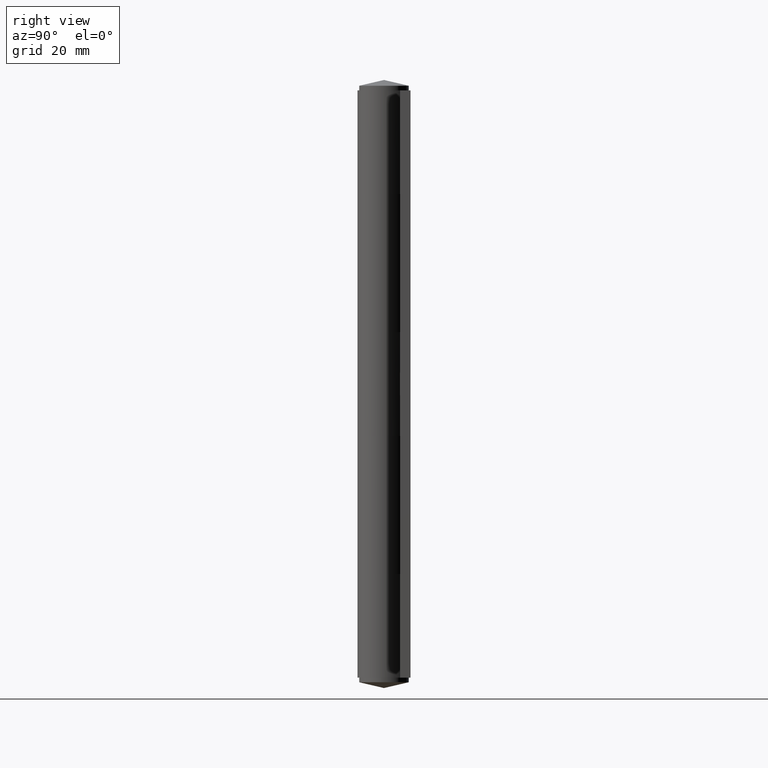
[diagram: clean part render]
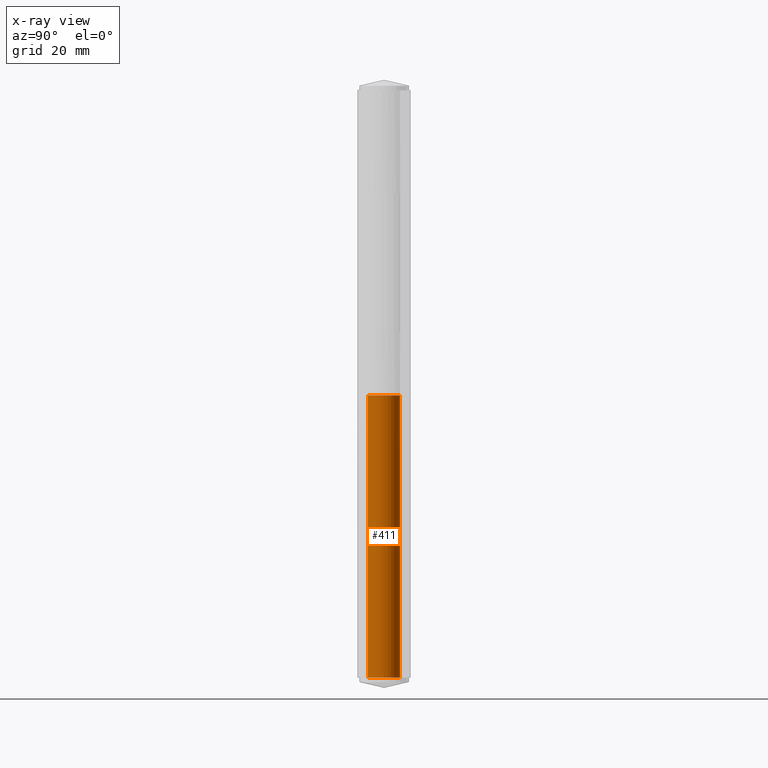
[diagram: x-ray — body ghosted, one internal face saturated and labeled with its STEP entity id]
A machine part, right view, then the same camera in x-ray: the body is ghosted and one INTERNAL B-rep face — a face not visible from any outside direction — is saturated and labeled: STEP entity #411.
In plain terms, the highlighted face is a freeform B-spline surface patch.
Its self-contained STEP definition (entity closure, byte-faithful):
#10=CARTESIAN_POINT('',(2.799994999999938,0.0,49.000007629394531));
#11=VERTEX_POINT('',#10);
#12=CARTESIAN_POINT('',(0.170935605844090,2.794772444883350,49.000007629394531));
#13=VERTEX_POINT('',#12);
#14=CARTESIAN_POINT('',(2.799994999999938,0.0,49.000007629394531));
#15=CARTESIAN_POINT('',(2.799994999999938,2.633972283438069,49.000007629394531));
#16=CARTESIAN_POINT('',(0.170935605844090,2.794772444883343,49.000007629394531));
#24=(BOUNDED_CURVE()B_SPLINE_CURVE(2,(#14,#15,#16),.UNSPECIFIED.,.F.,.U.)B_SPLINE_CURVE_WITH_KNOTS((3,3),(0.0,0.239332962217942),.UNSPECIFIED.)CURVE()GEOMETRIC_REPRESENTATION_ITEM()RATIONAL_B_SPLINE_CURVE((1.0,0.719603993311315,0.976072041621708))REPRESENTATION_ITEM(''));
#25=EDGE_CURVE('',#11,#13,#24,.T.);
#44=CARTESIAN_POINT('',(-0.170935605844033,-2.794772444883350,49.000007629394531));
#45=VERTEX_POINT('',#44);
#59=CARTESIAN_POINT('',(-0.170935605844032,-2.794772444883343,49.000007629394538));
#60=CARTESIAN_POINT('',(-0.085547584667329,-2.799994999999910,49.000007629394531));
#61=CARTESIAN_POINT('',(2.817679E-014,-2.799994999999910,49.000007629394531));
#62=CARTESIAN_POINT('',(2.799994999999938,-2.799994999999911,49.000007629394517));
#63=CARTESIAN_POINT('',(2.799994999999938,0.0,49.000007629394531));
#71=(BOUNDED_CURVE()B_SPLINE_CURVE(2,(#59,#60,#61,#62,#63),.UNSPECIFIED.,.F.,.U.)B_SPLINE_CURVE_WITH_KNOTS((3,2,3),(0.739332962217942,0.750000000000000,1.0),.UNSPECIFIED.)CURVE()GEOMETRIC_REPRESENTATION_ITEM()RATIONAL_B_SPLINE_CURVE((0.976072041621708,0.987502787875233,1.0,0.707106781186547,1.0))REPRESENTATION_ITEM(''));
#72=EDGE_CURVE('',#45,#11,#71,.T.);
#309=CARTESIAN_POINT('',(0.170935605844085,2.794772444883365,0.000007629394531));
#310=VERTEX_POINT('',#309);
#311=CARTESIAN_POINT('',(0.170935605844085,2.794772444883365,0.000007629394531));
#312=CARTESIAN_POINT('',(0.170935605844090,2.794772444883350,49.000007629394531));
#313=QUASI_UNIFORM_CURVE('',1,(#311,#312),.UNSPECIFIED.,.F.,.U.);
#314=EDGE_CURVE('',#310,#13,#313,.T.);
#333=CARTESIAN_POINT('',(-0.170935605844041,-2.794772444883365,0.000007629394531));
#334=VERTEX_POINT('',#333);
#348=CARTESIAN_POINT('',(-0.170935605844041,-2.794772444883365,0.000007629394531));
#349=CARTESIAN_POINT('',(-0.170935605844033,-2.794772444883350,49.000007629394531));
#350=QUASI_UNIFORM_CURVE('',1,(#348,#349),.UNSPECIFIED.,.F.,.U.);
#351=EDGE_CURVE('',#334,#45,#350,.T.);
#357=CARTESIAN_POINT('',(-0.170935605454875,-2.794772444907160,-1.224992370605492));
#358=CARTESIAN_POINT('',(2.623836839452284,-2.965708050362057,-1.224992370605492));
#359=CARTESIAN_POINT('',(2.794772444907182,-0.170935605454897,-1.224992370605492));
#360=CARTESIAN_POINT('',(2.965708050362079,2.623836839452262,-1.224992370605492));
#361=CARTESIAN_POINT('',(0.170935605454919,2.794772444907160,-1.224992370605492));
#362=CARTESIAN_POINT('',(-0.170935605454869,-2.794772444907160,50.255632629394533));
#363=CARTESIAN_POINT('',(2.623836839452290,-2.965708050362057,50.255632629394533));
#364=CARTESIAN_POINT('',(2.794772444907188,-0.170935605454897,50.255632629394533));
#365=CARTESIAN_POINT('',(2.965708050362086,2.623836839452262,50.255632629394533));
#366=CARTESIAN_POINT('',(0.170935605454926,2.794772444907160,50.255632629394533));
#374=(BOUNDED_SURFACE()B_SPLINE_SURFACE(2,1,((#357,#362),(#358,#363),(#359,#364),(#360,#365),(#361,#366)),.UNSPECIFIED.,.F.,.F.,.U.)B_SPLINE_SURFACE_WITH_KNOTS((3,2,3),(2,2),(0.0,4.639183614307291,9.278367228614583),(0.0,51.480625000000032),.UNSPECIFIED.)GEOMETRIC_REPRESENTATION_ITEM()RATIONAL_B_SPLINE_SURFACE(((1.0,1.0),(0.707106781186548,0.707106781186548),(1.0,1.0),(0.707106781186548,0.707106781186548),(1.0,1.0)))REPRESENTATION_ITEM('')SURFACE());
#375=ORIENTED_EDGE('',*,*,#25,.F.);
#376=ORIENTED_EDGE('',*,*,#72,.F.);
#377=ORIENTED_EDGE('',*,*,#351,.F.);
#378=CARTESIAN_POINT('',(2.799994999999962,0.0,0.000007629394531));
#379=VERTEX_POINT('',#378);
#380=CARTESIAN_POINT('',(-0.170935605844042,-2.794772444883373,0.000007629394545));
#381=CARTESIAN_POINT('',(-0.085547584667337,-2.799994999999940,0.000007629394545));
#382=CARTESIAN_POINT('',(2.217622E-014,-2.799994999999940,0.000007629394531));
#383=CARTESIAN_POINT('',(2.799994999999963,-2.799994999999941,0.000007629394545));
#384=CARTESIAN_POINT('',(2.799994999999962,0.0,0.000007629394531));
#392=(BOUNDED_CURVE()B_SPLINE_CURVE(2,(#380,#381,#382,#383,#384),.UNSPECIFIED.,.F.,.U.)B_SPLINE_CURVE_WITH_KNOTS((3,2,3),(0.739332962217942,0.750000000000000,1.0),.UNSPECIFIED.)CURVE()GEOMETRIC_REPRESENTATION_ITEM()RATIONAL_B_SPLINE_CURVE((0.976072041621708,0.987502787875233,1.0,0.707106781186548,1.0))REPRESENTATION_ITEM(''));
#393=EDGE_CURVE('',#334,#379,#392,.T.);
#394=ORIENTED_EDGE('',*,*,#393,.T.);
#395=CARTESIAN_POINT('',(2.799994999999962,0.0,0.000007629394531));
#396=CARTESIAN_POINT('',(2.799994999999963,2.633972283438096,0.000007629394531));
#397=CARTESIAN_POINT('',(0.170935605844085,2.794772444883373,0.000007629394531));
#405=(BOUNDED_CURVE()B_SPLINE_CURVE(2,(#395,#396,#397),.UNSPECIFIED.,.F.,.U.)B_SPLINE_CURVE_WITH_KNOTS((3,3),(0.0,0.239332962217942),.UNSPECIFIED.)CURVE()GEOMETRIC_REPRESENTATION_ITEM()RATIONAL_B_SPLINE_CURVE((1.0,0.719603993311315,0.976072041621708))REPRESENTATION_ITEM(''));
#406=EDGE_CURVE('',#379,#310,#405,.T.);
#407=ORIENTED_EDGE('',*,*,#406,.T.);
#408=ORIENTED_EDGE('',*,*,#314,.T.);
#409=EDGE_LOOP('',(#375,#376,#377,#394,#407,#408));
#410=FACE_OUTER_BOUND('',#409,.T.);
#411=ADVANCED_FACE('',(#410),#374,.T.);